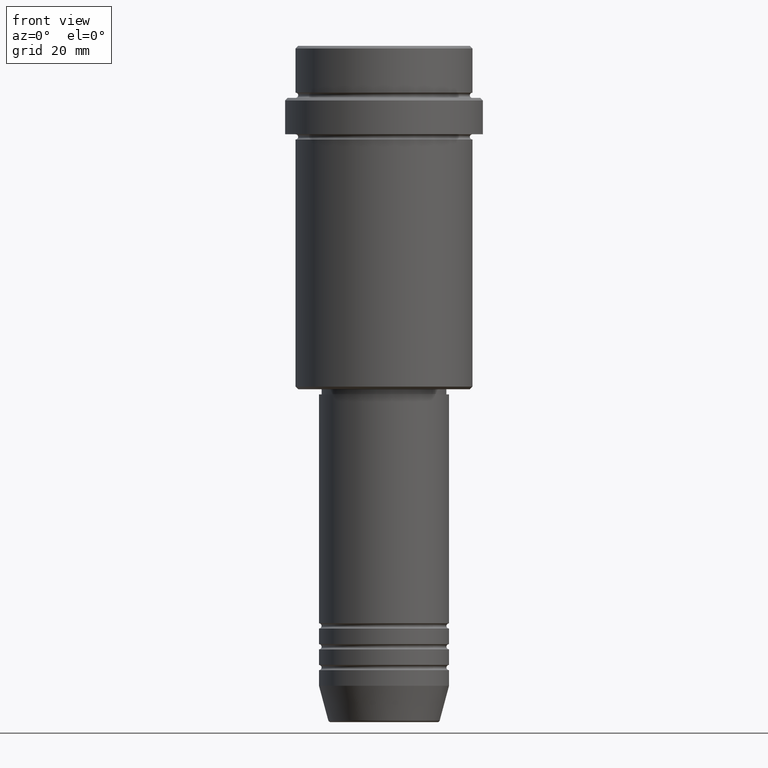
[diagram: clean part render]
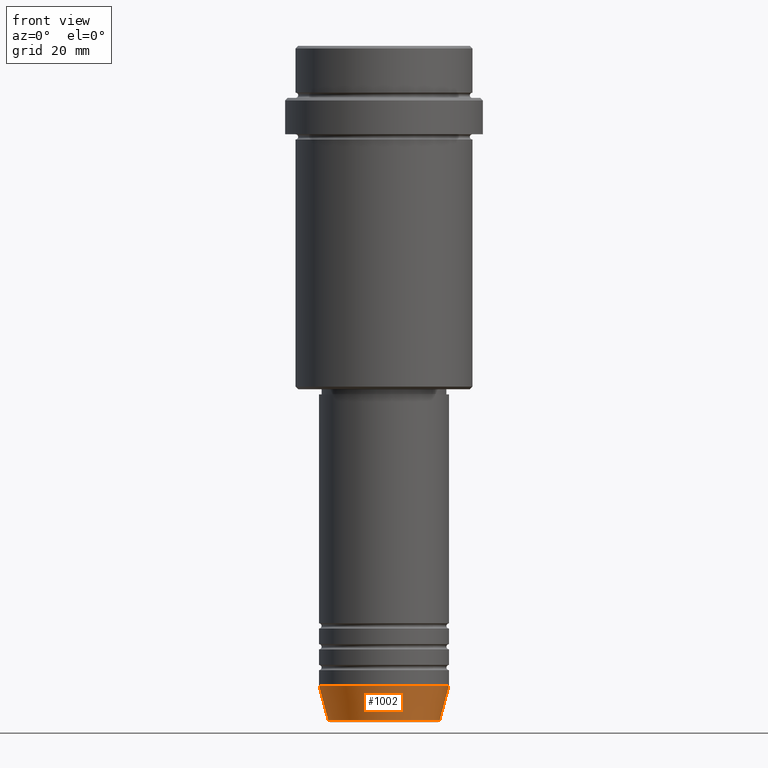
[diagram: same view with one face highlighted and labeled with its STEP entity id]
A machine part, front view. The second image highlights one B-rep face of the part: STEP entity #1002.
In plain terms, the highlighted conical surface has half-angle 15 deg.
Its self-contained STEP definition (entity closure, byte-faithful):
#2 = EDGE_CURVE ( 'NONE', #245, #329, #1022, .T. ) ;
#20 = CARTESIAN_POINT ( 'NONE',  ( -12.50000000000000000, 1.530808498934191521E-15, -123.0000000000000000 ) ) ;
#27 = DIRECTION ( 'NONE',  ( -0.000000000000000000, -0.000000000000000000, 1.000000000000000000 ) ) ;
#44 = VECTOR ( 'NONE', #565, 1000.000000000000000 ) ;
#55 = CARTESIAN_POINT ( 'NONE',  ( 0.000000000000000000, 0.000000000000000000, -123.0000000000000000 ) ) ;
#146 = ORIENTED_EDGE ( 'NONE', *, *, #2, .F. ) ;
#172 = EDGE_LOOP ( 'NONE', ( #818, #1189, #178, #146 ) ) ;
#178 = ORIENTED_EDGE ( 'NONE', *, *, #515, .T. ) ;
#193 = LINE ( 'NONE', #1298, #1398 ) ;
#230 = EDGE_CURVE ( 'NONE', #1075, #245, #243, .T. ) ;
#243 = LINE ( 'NONE', #903, #44 ) ;
#245 = VERTEX_POINT ( 'NONE', #20 ) ;
#329 = VERTEX_POINT ( 'NONE', #1181 ) ;
#466 = DIRECTION ( 'NONE',  ( 1.000000000000000000, 0.000000000000000000, 0.000000000000000000 ) ) ;
#487 = DIRECTION ( 'NONE',  ( -0.000000000000000000, -0.000000000000000000, 1.000000000000000000 ) ) ;
#515 = EDGE_CURVE ( 'NONE', #846, #329, #193, .T. ) ;
#550 = CIRCLE ( 'NONE', #856, 10.72365507213718416 ) ;
#560 = FACE_OUTER_BOUND ( 'NONE', #172, .T. ) ;
#565 = DIRECTION ( 'NONE',  ( -0.2588190451025213501, 3.169619151431772337E-17, 0.9659258262890680902 ) ) ;
#576 = AXIS2_PLACEMENT_3D ( 'NONE', #783, #1135, #1030 ) ;
#580 = CARTESIAN_POINT ( 'NONE',  ( 0.000000000000000000, 0.000000000000000000, -129.6294095225512706 ) ) ;
#679 = EDGE_CURVE ( 'NONE', #1075, #846, #550, .T. ) ;
#715 = CARTESIAN_POINT ( 'NONE',  ( -10.72365507213718416, 1.422038742429750121E-15, -129.6294095225512706 ) ) ;
#783 = CARTESIAN_POINT ( 'NONE',  ( 0.000000000000000000, 0.000000000000000000, -123.0000000000000000 ) ) ;
#818 = ORIENTED_EDGE ( 'NONE', *, *, #230, .F. ) ;
#846 = VERTEX_POINT ( 'NONE', #1126 ) ;
#856 = AXIS2_PLACEMENT_3D ( 'NONE', #580, #27, #1257 ) ;
#870 = DIRECTION ( 'NONE',  ( 0.2588190451025213501, 0.000000000000000000, 0.9659258262890680902 ) ) ;
#903 = CARTESIAN_POINT ( 'NONE',  ( -12.50000000000000000, 1.530808498934191521E-15, -123.0000000000000000 ) ) ;
#1002 = ADVANCED_FACE ( 'NONE', ( #560 ), #1123, .T. ) ;
#1022 = CIRCLE ( 'NONE', #1086, 12.50000000000000000 ) ;
#1030 = DIRECTION ( 'NONE',  ( 1.000000000000000000, 0.000000000000000000, 0.000000000000000000 ) ) ;
#1075 = VERTEX_POINT ( 'NONE', #715 ) ;
#1086 = AXIS2_PLACEMENT_3D ( 'NONE', #55, #487, #466 ) ;
#1123 = CONICAL_SURFACE ( 'NONE', #576, 12.50000000000000000, 0.2617993877991500740 ) ;
#1126 = CARTESIAN_POINT ( 'NONE',  ( 10.72365507213718416, 0.000000000000000000, -129.6294095225512706 ) ) ;
#1135 = DIRECTION ( 'NONE',  ( -0.000000000000000000, -0.000000000000000000, 1.000000000000000000 ) ) ;
#1181 = CARTESIAN_POINT ( 'NONE',  ( 12.50000000000000000, 0.000000000000000000, -123.0000000000000000 ) ) ;
#1189 = ORIENTED_EDGE ( 'NONE', *, *, #679, .T. ) ;
#1257 = DIRECTION ( 'NONE',  ( 1.000000000000000000, 0.000000000000000000, 0.000000000000000000 ) ) ;
#1298 = CARTESIAN_POINT ( 'NONE',  ( 12.50000000000000000, 0.000000000000000000, -123.0000000000000000 ) ) ;
#1398 = VECTOR ( 'NONE', #870, 1000.000000000000000 ) ;